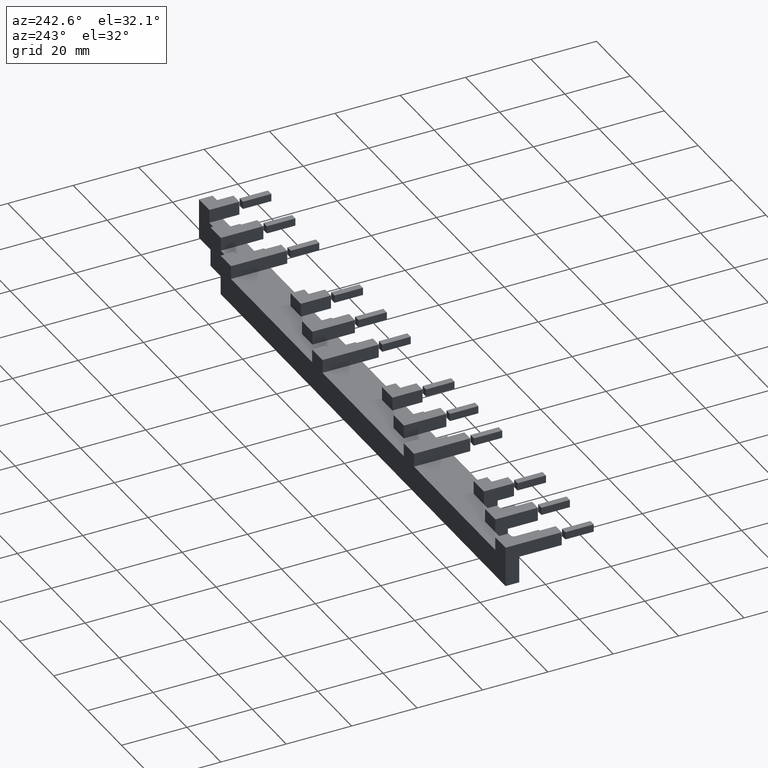
[diagram: clean part render]
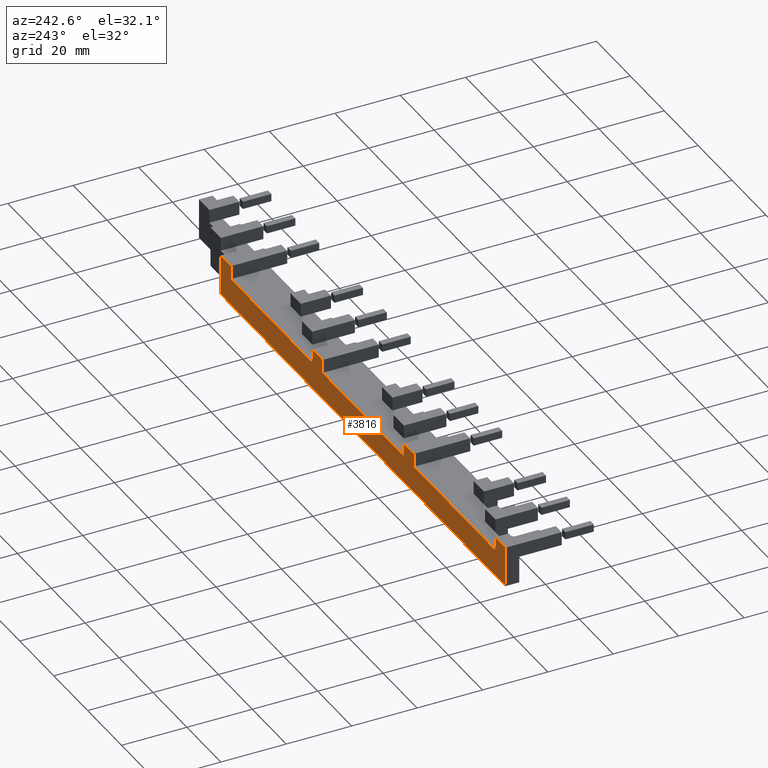
[diagram: same view with one face highlighted and labeled with its STEP entity id]
A machine part, auxiliary view. The second image highlights one B-rep face of the part: STEP entity #3816.
In plain terms, the highlighted planar face has unit normal (0, 1, 0).
Its self-contained STEP definition (entity closure, byte-faithful):
#690=CARTESIAN_POINT('',(108.0,12.200000000000061,100.09999999999997));
#691=VERTEX_POINT('',#690);
#698=CARTESIAN_POINT('',(108.0,12.200000000000061,95.999999999999957));
#699=VERTEX_POINT('',#698);
#700=CARTESIAN_POINT('',(108.0,12.200000000000061,95.999999999999957));
#701=DIRECTION('',(0.0,0.0,1.0));
#702=VECTOR('',#701,4.099999999999994);
#703=LINE('',#700,#702);
#704=EDGE_CURVE('',#699,#691,#703,.T.);
#729=CARTESIAN_POINT('',(114.09999999999968,12.200000000000076,100.09999999999997));
#730=VERTEX_POINT('',#729);
#747=CARTESIAN_POINT('',(114.09999999999968,12.200000000000061,95.999999999999957));
#748=VERTEX_POINT('',#747);
#755=CARTESIAN_POINT('',(114.09999999999968,12.200000000000061,95.999999999999957));
#756=DIRECTION('',(0.0,0.0,1.0));
#757=VECTOR('',#756,4.099999999999994);
#758=LINE('',#755,#757);
#759=EDGE_CURVE('',#748,#730,#758,.T.);
#874=CARTESIAN_POINT('',(108.0,12.200000000000088,100.09999999999997));
#875=DIRECTION('',(1.0,0.0,0.0));
#876=VECTOR('',#875,6.099999999999682);
#877=LINE('',#874,#876);
#878=EDGE_CURVE('',#691,#730,#877,.T.);
#909=CARTESIAN_POINT('',(60.099999999999689,12.200000000000033,95.999999999999972));
#910=VERTEX_POINT('',#909);
#911=CARTESIAN_POINT('',(108.00000000000001,12.200000000000067,95.999999999999957));
#912=DIRECTION('',(-1.0,0.0,0.0));
#913=VECTOR('',#912,47.900000000000333);
#914=LINE('',#911,#913);
#915=EDGE_CURVE('',#699,#910,#914,.T.);
#2212=CARTESIAN_POINT('',(162.00000000000003,12.200000000000076,100.09999999999997));
#2213=VERTEX_POINT('',#2212);
#2220=CARTESIAN_POINT('',(162.00000000000003,12.200000000000076,95.999999999999957));
#2221=VERTEX_POINT('',#2220);
#2222=CARTESIAN_POINT('',(162.00000000000003,12.200000000000076,95.999999999999957));
#2223=DIRECTION('',(0.0,0.0,1.0));
#2224=VECTOR('',#2223,4.099999999999994);
#2225=LINE('',#2222,#2224);
#2226=EDGE_CURVE('',#2221,#2213,#2225,.T.);
#2340=CARTESIAN_POINT('',(168.09999999999971,12.200000000000049,100.09999999999997));
#2341=VERTEX_POINT('',#2340);
#2348=CARTESIAN_POINT('',(162.00000000000003,12.200000000000061,100.09999999999997));
#2349=DIRECTION('',(1.0,0.0,0.0));
#2350=VECTOR('',#2349,6.099999999999682);
#2351=LINE('',#2348,#2350);
#2352=EDGE_CURVE('',#2213,#2341,#2351,.T.);
#2399=CARTESIAN_POINT('',(162.00000000000003,12.200000000000076,95.999999999999943));
#2400=DIRECTION('',(-1.0,0.0,0.0));
#2401=VECTOR('',#2400,47.900000000000333);
#2402=LINE('',#2399,#2401);
#2403=EDGE_CURVE('',#2221,#748,#2402,.T.);
#2760=CARTESIAN_POINT('',(54.0,12.200000000000061,100.09999999999997));
#2761=VERTEX_POINT('',#2760);
#2768=CARTESIAN_POINT('',(54.0,12.200000000000061,95.999999999999972));
#2769=VERTEX_POINT('',#2768);
#2770=CARTESIAN_POINT('',(54.0,12.200000000000061,95.999999999999972));
#2771=DIRECTION('',(0.0,0.0,1.0));
#2772=VECTOR('',#2771,4.099999999999994);
#2773=LINE('',#2770,#2772);
#2774=EDGE_CURVE('',#2769,#2761,#2773,.T.);
#2799=CARTESIAN_POINT('',(60.099999999999689,12.200000000000033,100.09999999999997));
#2800=VERTEX_POINT('',#2799);
#2816=CARTESIAN_POINT('',(60.099999999999689,12.200000000000033,95.999999999999972));
#2817=DIRECTION('',(0.0,0.0,1.0));
#2818=VECTOR('',#2817,4.099999999999994);
#2819=LINE('',#2816,#2818);
#2820=EDGE_CURVE('',#910,#2800,#2819,.T.);
#2913=CARTESIAN_POINT('',(54.000000000000007,12.200000000000045,100.09999999999997));
#2914=DIRECTION('',(1.0,0.0,0.0));
#2915=VECTOR('',#2914,6.099999999999682);
#2916=LINE('',#2913,#2915);
#2917=EDGE_CURVE('',#2761,#2800,#2916,.T.);
#2955=CARTESIAN_POINT('',(6.099999999999653,12.200000000000021,95.999999999999972));
#2956=VERTEX_POINT('',#2955);
#2957=CARTESIAN_POINT('',(53.999999999999993,12.200000000000056,95.999999999999957));
#2958=DIRECTION('',(-1.0,0.0,0.0));
#2959=VECTOR('',#2958,47.90000000000034);
#2960=LINE('',#2957,#2959);
#2961=EDGE_CURVE('',#2769,#2956,#2960,.T.);
#3411=CARTESIAN_POINT('',(168.0999999999996,12.200000000000049,87.79999999999994));
#3412=VERTEX_POINT('',#3411);
#3419=CARTESIAN_POINT('',(168.09999999999971,12.200000000000049,87.799999999999955));
#3420=DIRECTION('',(0.0,0.0,1.0));
#3421=VECTOR('',#3420,12.299999999999997);
#3422=LINE('',#3419,#3421);
#3423=EDGE_CURVE('',#3412,#2341,#3422,.T.);
#3597=CARTESIAN_POINT('',(-1.690762E-014,12.200000000000049,87.799999999999983));
#3598=VERTEX_POINT('',#3597);
#3605=CARTESIAN_POINT('',(-2.842171E-014,12.200000000000045,87.799999999999969));
#3606=DIRECTION('',(1.0,0.0,0.0));
#3607=VECTOR('',#3606,168.0999999999996);
#3608=LINE('',#3605,#3607);
#3609=EDGE_CURVE('',#3598,#3412,#3608,.T.);
#3755=CARTESIAN_POINT('',(-1.482798E-014,12.200000000000049,100.09999999999998));
#3756=VERTEX_POINT('',#3755);
#3763=CARTESIAN_POINT('',(-1.690762E-014,12.200000000000049,87.799999999999997));
#3764=DIRECTION('',(0.0,0.0,1.0));
#3765=VECTOR('',#3764,12.299999999999997);
#3766=LINE('',#3763,#3765);
#3767=EDGE_CURVE('',#3598,#3756,#3766,.T.);
#3781=CARTESIAN_POINT('',(-1.552120E-014,12.200000000000049,96.0));
#3782=DIRECTION('',(0.0,1.0,0.0));
#3783=DIRECTION('',(0.0,0.0,1.0));
#3784=AXIS2_PLACEMENT_3D('',#3781,#3782,#3783);
#3785=PLANE('',#3784);
#3786=CARTESIAN_POINT('',(6.099999999999653,12.200000000000021,100.09999999999997));
#3787=VERTEX_POINT('',#3786);
#3788=CARTESIAN_POINT('',(-1.598721E-014,12.200000000000033,100.09999999999997));
#3789=DIRECTION('',(1.0,0.0,0.0));
#3790=VECTOR('',#3789,6.099999999999669);
#3791=LINE('',#3788,#3790);
#3792=EDGE_CURVE('',#3756,#3787,#3791,.T.);
#3793=ORIENTED_EDGE('',*,*,#3792,.T.);
#3794=CARTESIAN_POINT('',(6.099999999999653,12.200000000000021,95.999999999999972));
#3795=DIRECTION('',(0.0,0.0,1.0));
#3796=VECTOR('',#3795,4.099999999999994);
#3797=LINE('',#3794,#3796);
#3798=EDGE_CURVE('',#2956,#3787,#3797,.T.);
#3799=ORIENTED_EDGE('',*,*,#3798,.F.);
#3800=ORIENTED_EDGE('',*,*,#2961,.F.);
#3801=ORIENTED_EDGE('',*,*,#2774,.T.);
#3802=ORIENTED_EDGE('',*,*,#2917,.T.);
#3803=ORIENTED_EDGE('',*,*,#2820,.F.);
#3804=ORIENTED_EDGE('',*,*,#915,.F.);
#3805=ORIENTED_EDGE('',*,*,#704,.T.);
#3806=ORIENTED_EDGE('',*,*,#878,.T.);
#3807=ORIENTED_EDGE('',*,*,#759,.F.);
#3808=ORIENTED_EDGE('',*,*,#2403,.F.);
#3809=ORIENTED_EDGE('',*,*,#2226,.T.);
#3810=ORIENTED_EDGE('',*,*,#2352,.T.);
#3811=ORIENTED_EDGE('',*,*,#3423,.F.);
#3812=ORIENTED_EDGE('',*,*,#3609,.F.);
#3813=ORIENTED_EDGE('',*,*,#3767,.T.);
#3814=EDGE_LOOP('',(#3793,#3799,#3800,#3801,#3802,#3803,#3804,#3805,#3806,#3807,#3808,#3809,#3810,#3811,#3812,#3813));
#3815=FACE_OUTER_BOUND('',#3814,.T.);
#3816=ADVANCED_FACE('',(#3815),#3785,.T.);